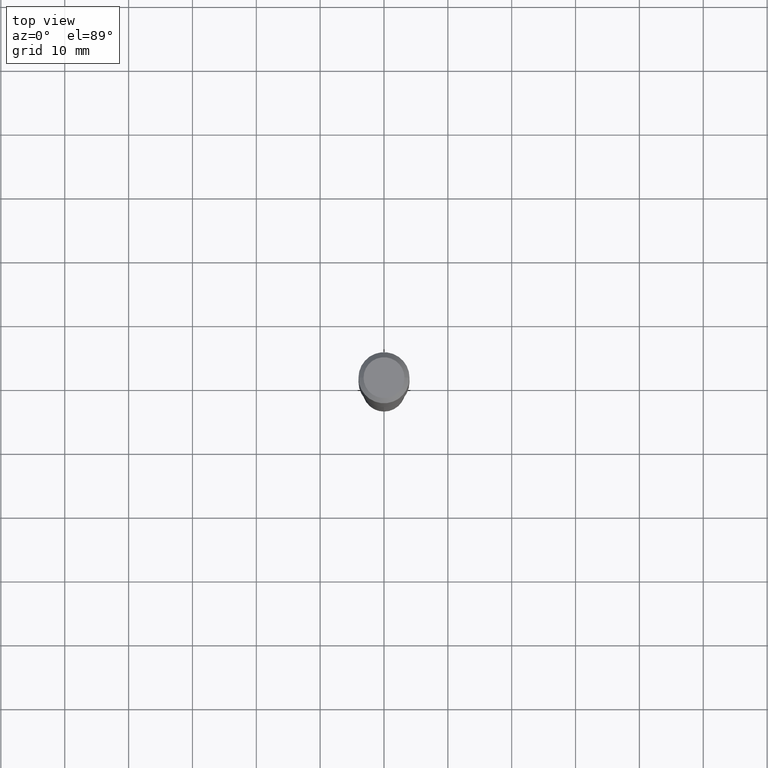
[diagram: clean part render]
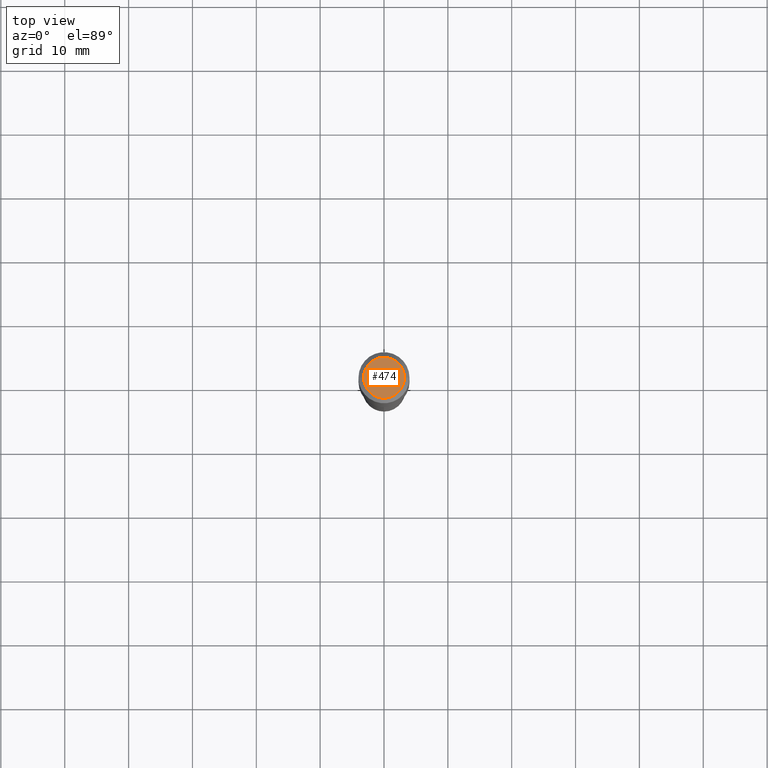
[diagram: same view with one face highlighted and labeled with its STEP entity id]
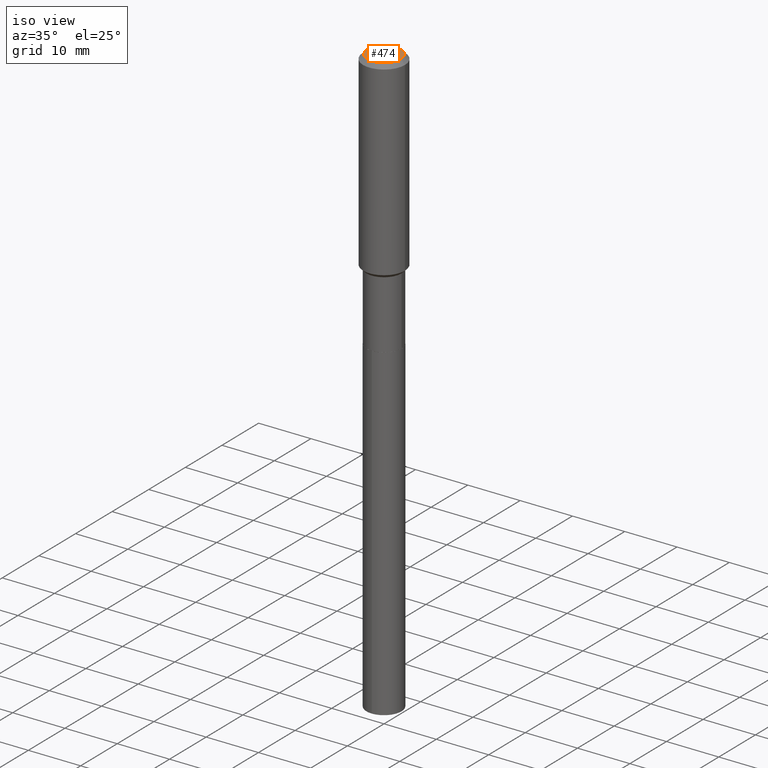
[diagram: same view with one face highlighted and labeled with its STEP entity id]
A machine part, top view. The second image highlights one B-rep face of the part: STEP entity #474.
A second angle (iso view) of the same face is appended — the face is thin or edge-on in the first view.
In plain terms, the highlighted planar face has unit normal (0, -0, -1).
Its self-contained STEP definition (entity closure, byte-faithful):
#1 = CARTESIAN_POINT ( 'NONE',  ( -0.1260000000000000009, 9.348441284752484904E-16, 3.860086710906114178E-18 ) ) ;
#17 = CARTESIAN_POINT ( 'NONE',  ( -4.719860820353100843E-47, 6.738710358733633822E-33, 1.930043355456229866E-18 ) ) ;
#19 = CIRCLE ( 'NONE', #371, 0.1260000000000000009 ) ;
#21 = DIRECTION ( 'NONE',  ( -1.000000000000000000, 6.982962677686265922E-15, -4.876176775795935793E-29 ) ) ;
#50 = EDGE_LOOP ( 'NONE', ( #463, #395 ) ) ;
#71 = DIRECTION ( 'NONE',  ( 1.000000000000000000, -6.982962677686265922E-15, 4.876281427513067258E-29 ) ) ;
#109 = AXIS2_PLACEMENT_3D ( 'NONE', #313, #325, #111 ) ;
#111 = DIRECTION ( 'NONE',  ( 1.000000000000000000, -6.982962677686265922E-15, 4.876281427513067258E-29 ) ) ;
#142 = CARTESIAN_POINT ( 'NONE',  ( 0.1260000000000000009, -1.027466422270894443E-15, 3.860086710919128072E-18 ) ) ;
#192 = PLANE ( 'NONE',  #248 ) ;
#218 = DIRECTION ( 'NONE',  ( -2.445468806185136597E-29, 3.491481338843145583E-15, 1.000000000000000000 ) ) ;
#248 = AXIS2_PLACEMENT_3D ( 'NONE', #17, #305, #21 ) ;
#305 = DIRECTION ( 'NONE',  ( 2.438088387897960049E-29, -3.491481338843145188E-15, -1.000000000000000000 ) ) ;
#313 = CARTESIAN_POINT ( 'NONE',  ( -9.439721640706201686E-47, 1.347742071746726764E-32, 3.860086710912459732E-18 ) ) ;
#314 = CIRCLE ( 'NONE', #109, 0.1260000000000000009 ) ;
#316 = VERTEX_POINT ( 'NONE', #1 ) ;
#325 = DIRECTION ( 'NONE',  ( -2.445468806185136597E-29, 3.491481338843145583E-15, 1.000000000000000000 ) ) ;
#371 = AXIS2_PLACEMENT_3D ( 'NONE', #398, #218, #71 ) ;
#374 = FACE_OUTER_BOUND ( 'NONE', #50, .T. ) ;
#395 = ORIENTED_EDGE ( 'NONE', *, *, #479, .T. ) ;
#398 = CARTESIAN_POINT ( 'NONE',  ( -9.439721640706201686E-47, 1.347742071746726764E-32, 3.860086710912459732E-18 ) ) ;
#412 = VERTEX_POINT ( 'NONE', #142 ) ;
#463 = ORIENTED_EDGE ( 'NONE', *, *, #482, .T. ) ;
#474 = ADVANCED_FACE ( 'NONE', ( #374 ), #192, .F. ) ;
#479 = EDGE_CURVE ( 'NONE', #412, #316, #314, .T. ) ;
#482 = EDGE_CURVE ( 'NONE', #316, #412, #19, .T. ) ;